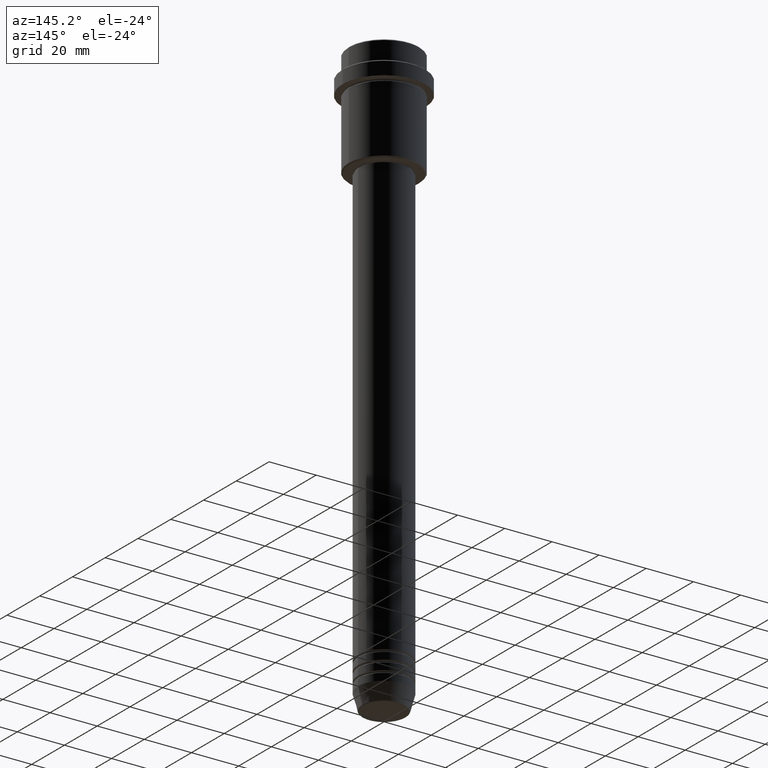
[diagram: clean part render]
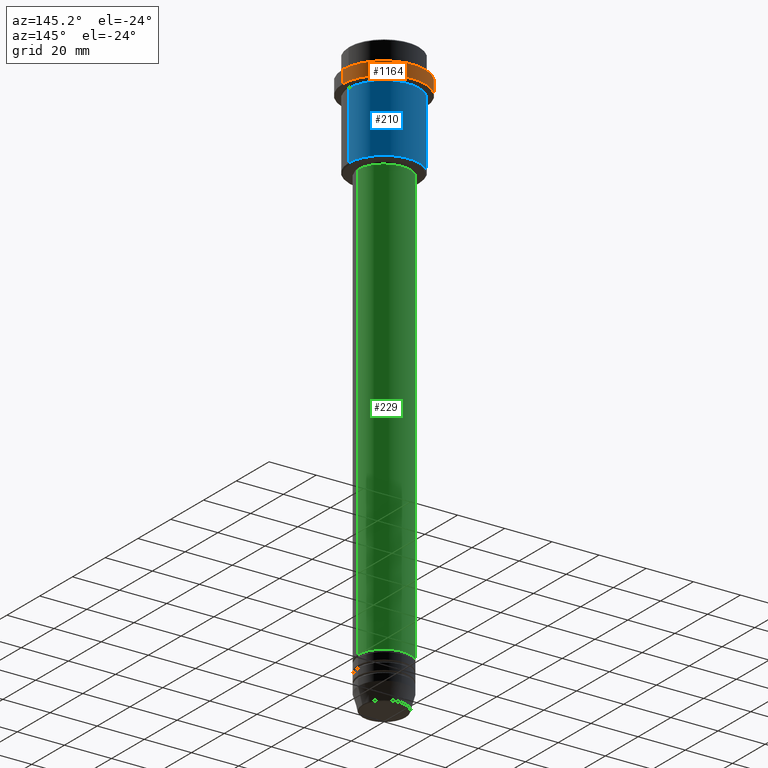
[diagram: same view with three faces highlighted in distinct colors, each labeled with its STEP entity id]
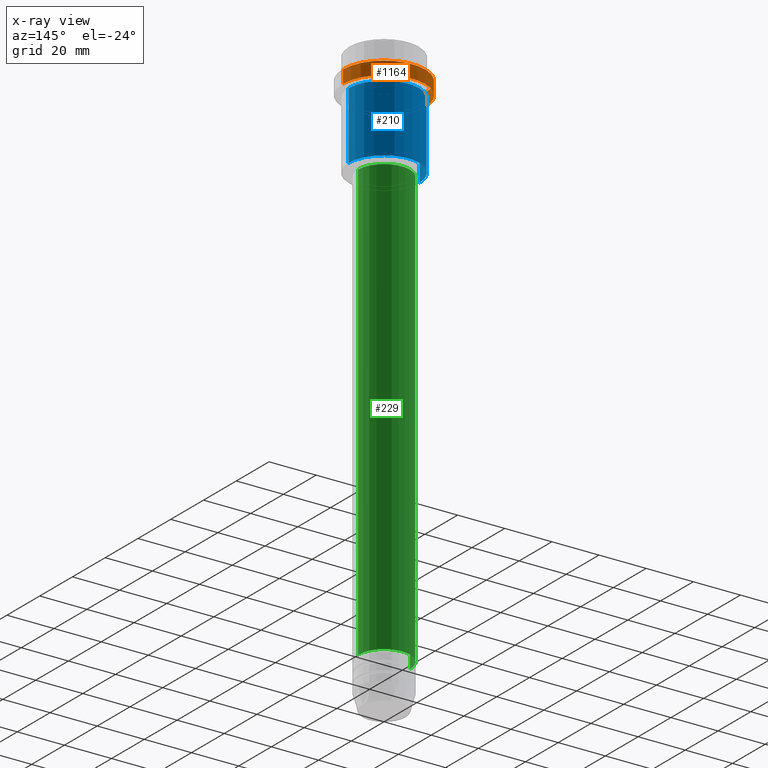
[diagram: x-ray of the same camera — body ghosted, the three highlighted faces saturated]
A machine part, auxiliary view with three faces highlighted in distinct colors.
The next image is the same camera in x-ray (body ghosted, the three faces saturated) — at least one of them is partly hidden behind the body in this view.
Their STEP definitions:

[orange] entity #1164 — the highlighted cylindrical surface (partial cylindrical patch) has radius 17.5 mm, axis along (-0, -0, 1).
#11 = DIRECTION ( 'NONE',  ( -0.000000000000000000, -0.000000000000000000, 1.000000000000000000 ) ) ;
#17 = VECTOR ( 'NONE', #891, 1000.000000000000000 ) ;
#65 = AXIS2_PLACEMENT_3D ( 'NONE', #1275, #545, #1173 ) ;
#101 = CARTESIAN_POINT ( 'NONE',  ( -17.50000000000000000, 2.143131898507868248E-15, 0.000000000000000000 ) ) ;
#142 = ORIENTED_EDGE ( 'NONE', *, *, #814, .T. ) ;
#222 = CIRCLE ( 'NONE', #65, 17.50000000000000000 ) ;
#354 = EDGE_CURVE ( 'NONE', #567, #474, #442, .T. ) ;
#408 = CARTESIAN_POINT ( 'NONE',  ( 17.50000000000000000, 0.000000000000000000, -15.00000000000000000 ) ) ;
#414 = CARTESIAN_POINT ( 'NONE',  ( -17.50000000000000000, 2.143131898507868248E-15, -15.00000000000000000 ) ) ;
#442 = LINE ( 'NONE', #1212, #1402 ) ;
#474 = VERTEX_POINT ( 'NONE', #846 ) ;
#545 = DIRECTION ( 'NONE',  ( 0.000000000000000000, 0.000000000000000000, -1.000000000000000000 ) ) ;
#567 = VERTEX_POINT ( 'NONE', #408 ) ;
#592 = FACE_OUTER_BOUND ( 'NONE', #1262, .T. ) ;
#617 = EDGE_CURVE ( 'NONE', #794, #474, #222, .T. ) ;
#670 = LINE ( 'NONE', #101, #17 ) ;
#692 = CARTESIAN_POINT ( 'NONE',  ( 0.000000000000000000, 0.000000000000000000, 0.000000000000000000 ) ) ;
#697 = DIRECTION ( 'NONE',  ( 1.000000000000000000, 0.000000000000000000, 0.000000000000000000 ) ) ;
#713 = CYLINDRICAL_SURFACE ( 'NONE', #739, 17.50000000000000000 ) ;
#739 = AXIS2_PLACEMENT_3D ( 'NONE', #692, #1119, #697 ) ;
#794 = VERTEX_POINT ( 'NONE', #997 ) ;
#802 = AXIS2_PLACEMENT_3D ( 'NONE', #894, #11, #1303 ) ;
#809 = DIRECTION ( 'NONE',  ( -0.000000000000000000, -0.000000000000000000, 1.000000000000000000 ) ) ;
#814 = EDGE_CURVE ( 'NONE', #567, #1054, #1408, .T. ) ;
#846 = CARTESIAN_POINT ( 'NONE',  ( 17.50000000000000000, 0.000000000000000000, -9.499999999999971578 ) ) ;
#891 = DIRECTION ( 'NONE',  ( -0.000000000000000000, -0.000000000000000000, 1.000000000000000000 ) ) ;
#894 = CARTESIAN_POINT ( 'NONE',  ( 0.000000000000000000, 0.000000000000000000, -15.00000000000000000 ) ) ;
#960 = EDGE_CURVE ( 'NONE', #1054, #794, #670, .T. ) ;
#997 = CARTESIAN_POINT ( 'NONE',  ( -17.50000000000000000, 2.143131898507868248E-15, -9.499999999999971578 ) ) ;
#1054 = VERTEX_POINT ( 'NONE', #414 ) ;
#1119 = DIRECTION ( 'NONE',  ( -0.000000000000000000, -0.000000000000000000, 1.000000000000000000 ) ) ;
#1158 = ORIENTED_EDGE ( 'NONE', *, *, #960, .T. ) ;
#1164 = ADVANCED_FACE ( 'NONE', ( #592 ), #713, .T. ) ;
#1173 = DIRECTION ( 'NONE',  ( 1.000000000000000000, 0.000000000000000000, 0.000000000000000000 ) ) ;
#1212 = CARTESIAN_POINT ( 'NONE',  ( 17.50000000000000000, 0.000000000000000000, 0.000000000000000000 ) ) ;
#1262 = EDGE_LOOP ( 'NONE', ( #142, #1158, #1382, #1356 ) ) ;
#1275 = CARTESIAN_POINT ( 'NONE',  ( 0.000000000000000000, 0.000000000000000000, -9.499999999999971578 ) ) ;
#1303 = DIRECTION ( 'NONE',  ( 1.000000000000000000, 0.000000000000000000, 0.000000000000000000 ) ) ;
#1356 = ORIENTED_EDGE ( 'NONE', *, *, #354, .F. ) ;
#1382 = ORIENTED_EDGE ( 'NONE', *, *, #617, .T. ) ;
#1402 = VECTOR ( 'NONE', #809, 1000.000000000000000 ) ;
#1408 = CIRCLE ( 'NONE', #802, 17.50000000000000000 ) ;

[blue] entity #210 — the highlighted cylindrical surface (partial cylindrical patch) has radius 15 mm, axis along (-0, -0, 1).
#10 = DIRECTION ( 'NONE',  ( -0.000000000000000000, -0.000000000000000000, 1.000000000000000000 ) ) ;
#103 = DIRECTION ( 'NONE',  ( -0.000000000000000000, -0.000000000000000000, 1.000000000000000000 ) ) ;
#133 = VECTOR ( 'NONE', #10, 1000.000000000000000 ) ;
#157 = VECTOR ( 'NONE', #492, 1000.000000000000000 ) ;
#161 = LINE ( 'NONE', #1247, #157 ) ;
#173 = DIRECTION ( 'NONE',  ( -0.000000000000000000, -0.000000000000000000, 1.000000000000000000 ) ) ;
#210 = ADVANCED_FACE ( 'NONE', ( #865 ), #211, .T. ) ;
#211 = CYLINDRICAL_SURFACE ( 'NONE', #1065, 15.00000000000000000 ) ;
#290 = AXIS2_PLACEMENT_3D ( 'NONE', #1353, #173, #1365 ) ;
#307 = VERTEX_POINT ( 'NONE', #582 ) ;
#322 = ORIENTED_EDGE ( 'NONE', *, *, #1325, .T. ) ;
#336 = CARTESIAN_POINT ( 'NONE',  ( 0.000000000000000000, 0.000000000000000000, -44.50000000000002842 ) ) ;
#407 = EDGE_CURVE ( 'NONE', #719, #778, #705, .T. ) ;
#427 = VERTEX_POINT ( 'NONE', #1147 ) ;
#450 = DIRECTION ( 'NONE',  ( -0.000000000000000000, -0.000000000000000000, 1.000000000000000000 ) ) ;
#467 = EDGE_LOOP ( 'NONE', ( #1038, #322, #562, #1093 ) ) ;
#492 = DIRECTION ( 'NONE',  ( -0.000000000000000000, -0.000000000000000000, 1.000000000000000000 ) ) ;
#534 = DIRECTION ( 'NONE',  ( 1.000000000000000000, 0.000000000000000000, 0.000000000000000000 ) ) ;
#562 = ORIENTED_EDGE ( 'NONE', *, *, #1261, .F. ) ;
#582 = CARTESIAN_POINT ( 'NONE',  ( 15.00000000000000178, 0.000000000000000000, -16.00000000000000000 ) ) ;
#636 = AXIS2_PLACEMENT_3D ( 'NONE', #336, #450, #907 ) ;
#705 = CIRCLE ( 'NONE', #636, 15.00000000000000000 ) ;
#719 = VERTEX_POINT ( 'NONE', #1326 ) ;
#778 = VERTEX_POINT ( 'NONE', #1103 ) ;
#865 = FACE_OUTER_BOUND ( 'NONE', #467, .T. ) ;
#907 = DIRECTION ( 'NONE',  ( -1.000000000000000000, 0.000000000000000000, 0.000000000000000000 ) ) ;
#920 = CIRCLE ( 'NONE', #290, 15.00000000000000178 ) ;
#983 = EDGE_CURVE ( 'NONE', #719, #307, #1398, .T. ) ;
#1038 = ORIENTED_EDGE ( 'NONE', *, *, #407, .T. ) ;
#1065 = AXIS2_PLACEMENT_3D ( 'NONE', #1085, #103, #534 ) ;
#1085 = CARTESIAN_POINT ( 'NONE',  ( 0.000000000000000000, 0.000000000000000000, 0.000000000000000000 ) ) ;
#1093 = ORIENTED_EDGE ( 'NONE', *, *, #983, .F. ) ;
#1103 = CARTESIAN_POINT ( 'NONE',  ( -15.00000000000000000, 1.836970198721029589E-15, -44.50000000000002842 ) ) ;
#1147 = CARTESIAN_POINT ( 'NONE',  ( -15.00000000000000355, 1.836970198721029983E-15, -16.00000000000000000 ) ) ;
#1199 = CARTESIAN_POINT ( 'NONE',  ( 15.00000000000000000, 0.000000000000000000, 0.000000000000000000 ) ) ;
#1247 = CARTESIAN_POINT ( 'NONE',  ( -15.00000000000000000, 1.836970198721029589E-15, 0.000000000000000000 ) ) ;
#1261 = EDGE_CURVE ( 'NONE', #307, #427, #920, .T. ) ;
#1325 = EDGE_CURVE ( 'NONE', #778, #427, #161, .T. ) ;
#1326 = CARTESIAN_POINT ( 'NONE',  ( 15.00000000000000000, 0.000000000000000000, -44.50000000000002842 ) ) ;
#1353 = CARTESIAN_POINT ( 'NONE',  ( 0.000000000000000000, 0.000000000000000000, -16.00000000000000000 ) ) ;
#1365 = DIRECTION ( 'NONE',  ( 1.000000000000000000, 0.000000000000000000, 0.000000000000000000 ) ) ;
#1398 = LINE ( 'NONE', #1199, #133 ) ;

[green] entity #229 — the highlighted cylindrical surface (edge-blend (fillet) strip) has radius 11 mm, axis along (-0, -0, 1).
#24 = ORIENTED_EDGE ( 'NONE', *, *, #46, .T. ) ;
#46 = EDGE_CURVE ( 'NONE', #977, #1071, #423, .T. ) ;
#215 = DIRECTION ( 'NONE',  ( 1.000000000000000000, 0.000000000000000000, 0.000000000000000000 ) ) ;
#218 = DIRECTION ( 'NONE',  ( -0.000000000000000000, -0.000000000000000000, 1.000000000000000000 ) ) ;
#221 = AXIS2_PLACEMENT_3D ( 'NONE', #295, #1372, #508 ) ;
#229 = ADVANCED_FACE ( 'NONE', ( #882 ), #1078, .T. ) ;
#257 = CARTESIAN_POINT ( 'NONE',  ( 10.99999999999999822, 0.000000000000000000, -46.00000000000001421 ) ) ;
#295 = CARTESIAN_POINT ( 'NONE',  ( 0.000000000000000000, 0.000000000000000000, -230.9999999999998863 ) ) ;
#317 = CARTESIAN_POINT ( 'NONE',  ( -11.00000000000000000, 1.347111479062088405E-15, -230.9999999999998863 ) ) ;
#376 = EDGE_CURVE ( 'NONE', #398, #945, #464, .T. ) ;
#398 = VERTEX_POINT ( 'NONE', #257 ) ;
#423 = CIRCLE ( 'NONE', #221, 11.00000000000000000 ) ;
#464 = CIRCLE ( 'NONE', #1263, 10.99999999999999822 ) ;
#508 = DIRECTION ( 'NONE',  ( 1.000000000000000000, 0.000000000000000000, 0.000000000000000000 ) ) ;
#559 = CARTESIAN_POINT ( 'NONE',  ( -11.00000000000000000, 1.347111479062088405E-15, 0.000000000000000000 ) ) ;
#569 = CARTESIAN_POINT ( 'NONE',  ( 0.000000000000000000, 0.000000000000000000, -46.00000000000001421 ) ) ;
#741 = EDGE_LOOP ( 'NONE', ( #24, #745, #1129, #1189 ) ) ;
#745 = ORIENTED_EDGE ( 'NONE', *, *, #1021, .T. ) ;
#838 = LINE ( 'NONE', #1260, #1028 ) ;
#850 = DIRECTION ( 'NONE',  ( -0.000000000000000000, -0.000000000000000000, 1.000000000000000000 ) ) ;
#882 = FACE_OUTER_BOUND ( 'NONE', #741, .T. ) ;
#914 = DIRECTION ( 'NONE',  ( 1.000000000000000000, 0.000000000000000000, 0.000000000000000000 ) ) ;
#945 = VERTEX_POINT ( 'NONE', #1295 ) ;
#977 = VERTEX_POINT ( 'NONE', #1192 ) ;
#1010 = DIRECTION ( 'NONE',  ( -0.000000000000000000, -0.000000000000000000, 1.000000000000000000 ) ) ;
#1021 = EDGE_CURVE ( 'NONE', #1071, #945, #1207, .T. ) ;
#1026 = VECTOR ( 'NONE', #218, 1000.000000000000000 ) ;
#1028 = VECTOR ( 'NONE', #850, 1000.000000000000000 ) ;
#1071 = VERTEX_POINT ( 'NONE', #317 ) ;
#1078 = CYLINDRICAL_SURFACE ( 'NONE', #1218, 11.00000000000000000 ) ;
#1129 = ORIENTED_EDGE ( 'NONE', *, *, #376, .F. ) ;
#1189 = ORIENTED_EDGE ( 'NONE', *, *, #1380, .F. ) ;
#1190 = DIRECTION ( 'NONE',  ( -0.000000000000000000, -0.000000000000000000, 1.000000000000000000 ) ) ;
#1192 = CARTESIAN_POINT ( 'NONE',  ( 11.00000000000000000, 0.000000000000000000, -230.9999999999998863 ) ) ;
#1207 = LINE ( 'NONE', #559, #1026 ) ;
#1218 = AXIS2_PLACEMENT_3D ( 'NONE', #1400, #1190, #215 ) ;
#1260 = CARTESIAN_POINT ( 'NONE',  ( 11.00000000000000000, 0.000000000000000000, 0.000000000000000000 ) ) ;
#1263 = AXIS2_PLACEMENT_3D ( 'NONE', #569, #1010, #914 ) ;
#1295 = CARTESIAN_POINT ( 'NONE',  ( -10.99999999999999822, 1.347111479062088207E-15, -46.00000000000001421 ) ) ;
#1372 = DIRECTION ( 'NONE',  ( -0.000000000000000000, -0.000000000000000000, 1.000000000000000000 ) ) ;
#1380 = EDGE_CURVE ( 'NONE', #977, #398, #838, .T. ) ;
#1400 = CARTESIAN_POINT ( 'NONE',  ( 0.000000000000000000, 0.000000000000000000, 0.000000000000000000 ) ) ;